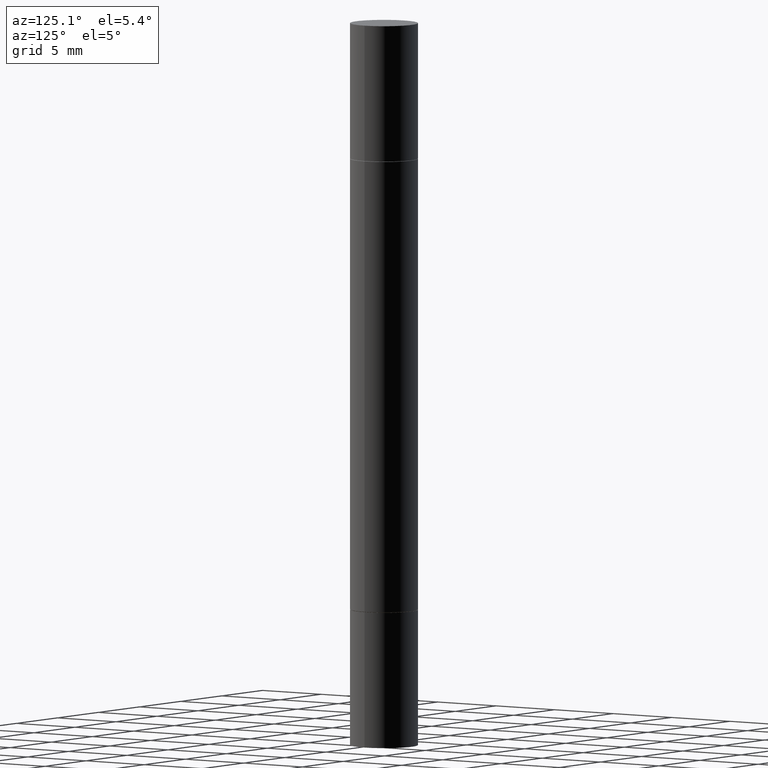
[diagram: clean part render]
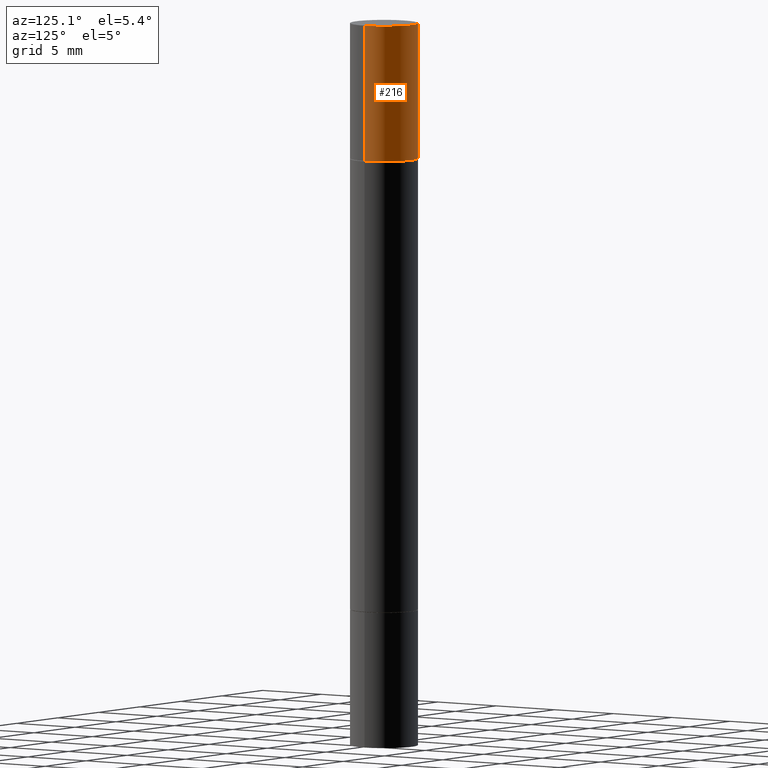
[diagram: same view with one face highlighted and labeled with its STEP entity id]
A machine part, auxiliary view. The second image highlights one B-rep face of the part: STEP entity #216.
In plain terms, the highlighted cylindrical surface (edge-blend (fillet) strip) has radius 2.3813 mm, axis along (-0, -0, -1).
Its self-contained STEP definition (entity closure, byte-faithful):
#9 = EDGE_CURVE ( 'NONE', #650, #570, #140, .T. ) ;
#32 = CARTESIAN_POINT ( 'NONE',  ( 0.000000000000000000, -6.984371750394897471E-15, -1.999999999999999778 ) ) ;
#45 = VECTOR ( 'NONE', #680, 39.37007874015748143 ) ;
#55 = VECTOR ( 'NONE', #193, 39.37007874015748143 ) ;
#83 = AXIS2_PLACEMENT_3D ( 'NONE', #411, #608, #292 ) ;
#140 = LINE ( 'NONE', #527, #45 ) ;
#165 = VERTEX_POINT ( 'NONE', #319 ) ;
#167 = CARTESIAN_POINT ( 'NONE',  ( 0.09375000000000001388, -6.532436783244791280E-16, 2.731847993664263218E-16 ) ) ;
#170 = CARTESIAN_POINT ( 'NONE',  ( 0.09375000000000001388, -1.963077582656387319E-15, -0.3749999999999996669 ) ) ;
#179 = ORIENTED_EDGE ( 'NONE', *, *, #329, .T. ) ;
#193 = DIRECTION ( 'NONE',  ( -2.445468806185136877E-29, -3.492890411551753071E-15, -1.000000000000000000 ) ) ;
#211 = VERTEX_POINT ( 'NONE', #345 ) ;
#216 = ADVANCED_FACE ( 'NONE', ( #245 ), #287, .T. ) ;
#245 = FACE_OUTER_BOUND ( 'NONE', #606, .T. ) ;
#249 = DIRECTION ( 'NONE',  ( 1.000000000000000000, -6.982962677686261189E-15, 0.000000000000000000 ) ) ;
#278 = CIRCLE ( 'NONE', #640, 0.09375000000000001388 ) ;
#283 = ORIENTED_EDGE ( 'NONE', *, *, #9, .T. ) ;
#287 = CYLINDRICAL_SURFACE ( 'NONE', #361, 0.09375000000000001388 ) ;
#292 = DIRECTION ( 'NONE',  ( 1.000000000000000000, -6.982962677686266711E-15, 0.000000000000000000 ) ) ;
#319 = CARTESIAN_POINT ( 'NONE',  ( -0.09375000000000001388, -1.033619216626503578E-17, -0.3749999999999996669 ) ) ;
#320 = EDGE_CURVE ( 'NONE', #211, #165, #455, .T. ) ;
#321 = DIRECTION ( 'NONE',  ( 2.445468806185136597E-29, 3.492890411551752677E-15, 1.000000000000000000 ) ) ;
#329 = EDGE_CURVE ( 'NONE', #570, #165, #396, .T. ) ;
#345 = CARTESIAN_POINT ( 'NONE',  ( -0.09375000000000001388, -1.033619216626503578E-17, 2.731847993664286391E-16 ) ) ;
#361 = AXIS2_PLACEMENT_3D ( 'NONE', #32, #557, #249 ) ;
#396 = CIRCLE ( 'NONE', #83, 0.09375000000000001388 ) ;
#411 = CARTESIAN_POINT ( 'NONE',  ( 3.973886810050846970E-29, -1.308424831623299814E-15, -0.3749999999999996669 ) ) ;
#429 = CARTESIAN_POINT ( 'NONE',  ( 4.890937612370273194E-29, 1.409072708608417355E-18, 2.731847993664263218E-16 ) ) ;
#439 = ORIENTED_EDGE ( 'NONE', *, *, #623, .F. ) ;
#455 = LINE ( 'NONE', #659, #55 ) ;
#468 = ORIENTED_EDGE ( 'NONE', *, *, #320, .F. ) ;
#485 = DIRECTION ( 'NONE',  ( 1.000000000000000000, -6.982962677686265922E-15, 0.000000000000000000 ) ) ;
#527 = CARTESIAN_POINT ( 'NONE',  ( 0.09375000000000001388, -7.639024501427984975E-15, -1.999999999999999778 ) ) ;
#557 = DIRECTION ( 'NONE',  ( -2.445468806185136597E-29, -3.492890411551752677E-15, -1.000000000000000000 ) ) ;
#570 = VERTEX_POINT ( 'NONE', #170 ) ;
#606 = EDGE_LOOP ( 'NONE', ( #468, #439, #283, #179 ) ) ;
#608 = DIRECTION ( 'NONE',  ( 2.445468806185136597E-29, 3.492890411551752677E-15, 1.000000000000000000 ) ) ;
#623 = EDGE_CURVE ( 'NONE', #650, #211, #278, .T. ) ;
#640 = AXIS2_PLACEMENT_3D ( 'NONE', #429, #321, #485 ) ;
#650 = VERTEX_POINT ( 'NONE', #167 ) ;
#659 = CARTESIAN_POINT ( 'NONE',  ( -0.09375000000000001388, -6.341200063103816387E-15, -1.999999999999999778 ) ) ;
#680 = DIRECTION ( 'NONE',  ( -2.445468806185136877E-29, -3.492890411551753071E-15, -1.000000000000000000 ) ) ;